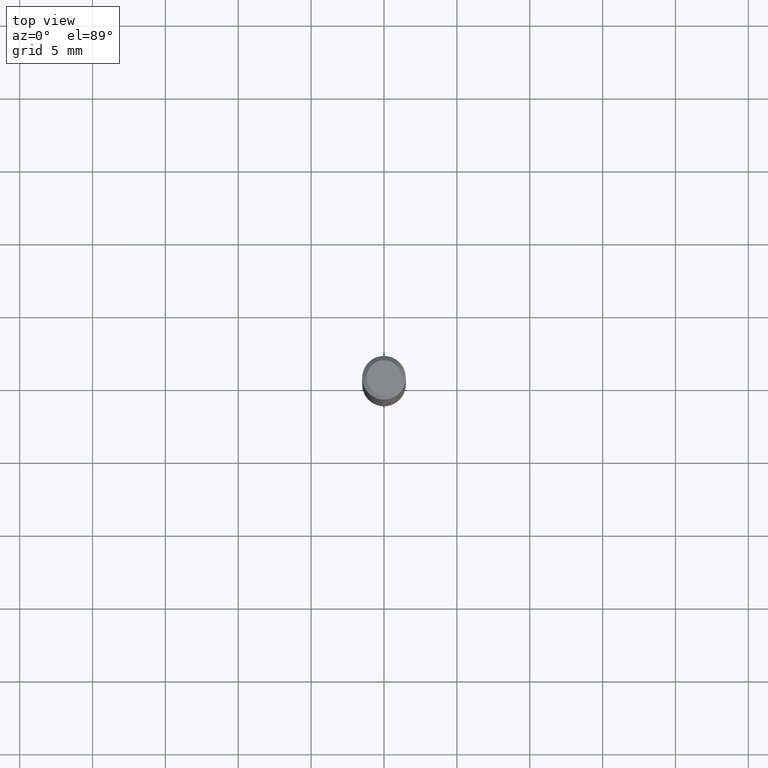
[diagram: clean part render]
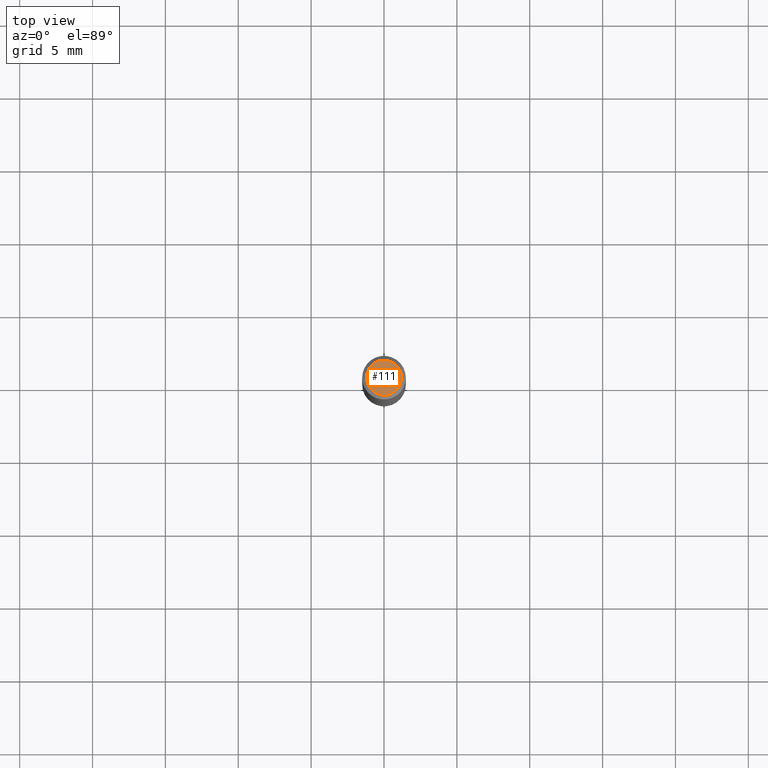
[diagram: same view with one face highlighted and labeled with its STEP entity id]
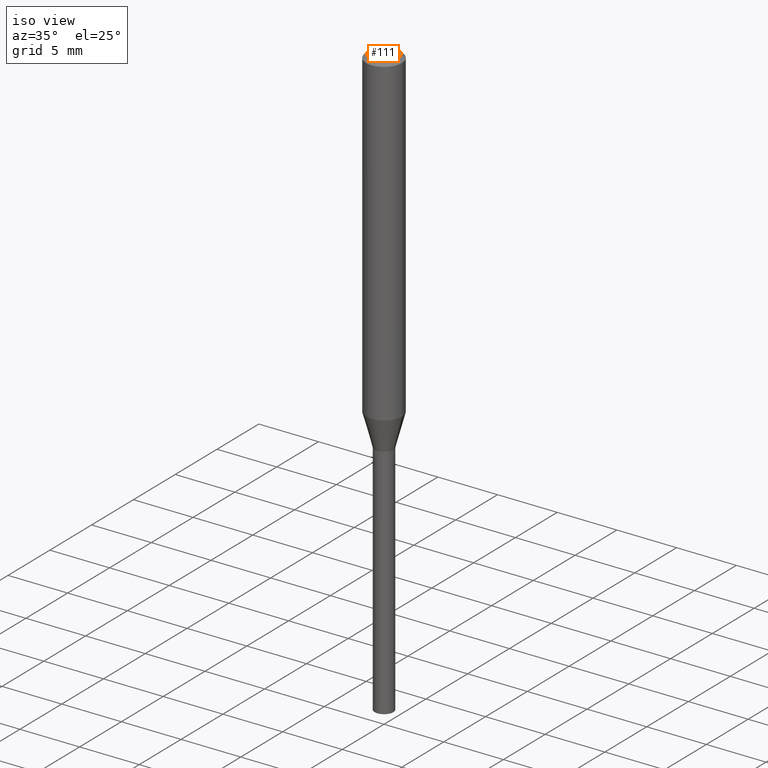
[diagram: same view with one face highlighted and labeled with its STEP entity id]
A machine part, top view. The second image highlights one B-rep face of the part: STEP entity #111.
A second angle (iso view) of the same face is appended — the face is thin or edge-on in the first view.
In plain terms, the highlighted planar face has unit normal (0, -0, -1).
Its self-contained STEP definition (entity closure, byte-faithful):
#33 = CARTESIAN_POINT ( 'NONE',  ( 8.265746106709734507E-48, -1.180129479067563789E-33, -3.380025165646692144E-19 ) ) ;
#46 = CARTESIAN_POINT ( 'NONE',  ( 4.132873053354867254E-48, -5.900647395337818946E-34, -1.690012582823346072E-19 ) ) ;
#56 = VERTEX_POINT ( 'NONE', #256 ) ;
#80 = CIRCLE ( 'NONE', #123, 0.04724000000000000421 ) ;
#99 = DIRECTION ( 'NONE',  ( -2.445468806185136597E-29, 3.491481338843145583E-15, 1.000000000000000000 ) ) ;
#102 = ORIENTED_EDGE ( 'NONE', *, *, #362, .T. ) ;
#109 = DIRECTION ( 'NONE',  ( 1.000000000000000000, -6.982962677686266711E-15, 4.876185090822587894E-29 ) ) ;
#111 = ADVANCED_FACE ( 'NONE', ( #249 ), #395, .F. ) ;
#123 = AXIS2_PLACEMENT_3D ( 'NONE', #373, #137, #109 ) ;
#137 = DIRECTION ( 'NONE',  ( -2.445468806185136597E-29, 3.491481338843145583E-15, 1.000000000000000000 ) ) ;
#168 = DIRECTION ( 'NONE',  ( -1.000000000000000000, 6.982962677686265922E-15, -4.876176775795935793E-29 ) ) ;
#214 = AXIS2_PLACEMENT_3D ( 'NONE', #46, #217, #168 ) ;
#217 = DIRECTION ( 'NONE',  ( 2.438088387897960049E-29, -3.491481338843145188E-15, -1.000000000000000000 ) ) ;
#249 = FACE_OUTER_BOUND ( 'NONE', #467, .T. ) ;
#256 = CARTESIAN_POINT ( 'NONE',  ( 0.04724000000000000421, -3.852183633974369345E-16, -3.380025165621689721E-19 ) ) ;
#362 = EDGE_CURVE ( 'NONE', #56, #432, #428, .T. ) ;
#373 = CARTESIAN_POINT ( 'NONE',  ( 8.265746106709734507E-48, -1.180129479067563789E-33, -3.380025165646692144E-19 ) ) ;
#384 = EDGE_CURVE ( 'NONE', #432, #56, #80, .T. ) ;
#394 = AXIS2_PLACEMENT_3D ( 'NONE', #33, #99, #452 ) ;
#395 = PLANE ( 'NONE',  #214 ) ;
#407 = ORIENTED_EDGE ( 'NONE', *, *, #384, .T. ) ;
#428 = CIRCLE ( 'NONE', #394, 0.04724000000000000421 ) ;
#432 = VERTEX_POINT ( 'NONE', #475 ) ;
#452 = DIRECTION ( 'NONE',  ( 1.000000000000000000, -6.982962677686266711E-15, 4.876185090822587894E-29 ) ) ;
#467 = EDGE_LOOP ( 'NONE', ( #407, #102 ) ) ;
#475 = CARTESIAN_POINT ( 'NONE',  ( -0.04724000000000000421, 3.504923541997677355E-16, -3.380025165670481712E-19 ) ) ;